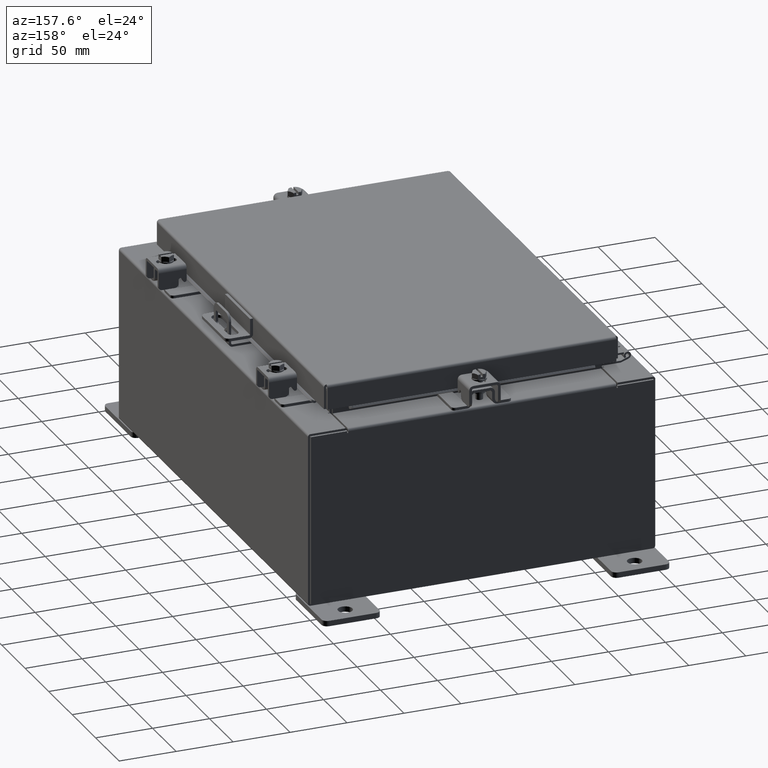
[diagram: clean part render]
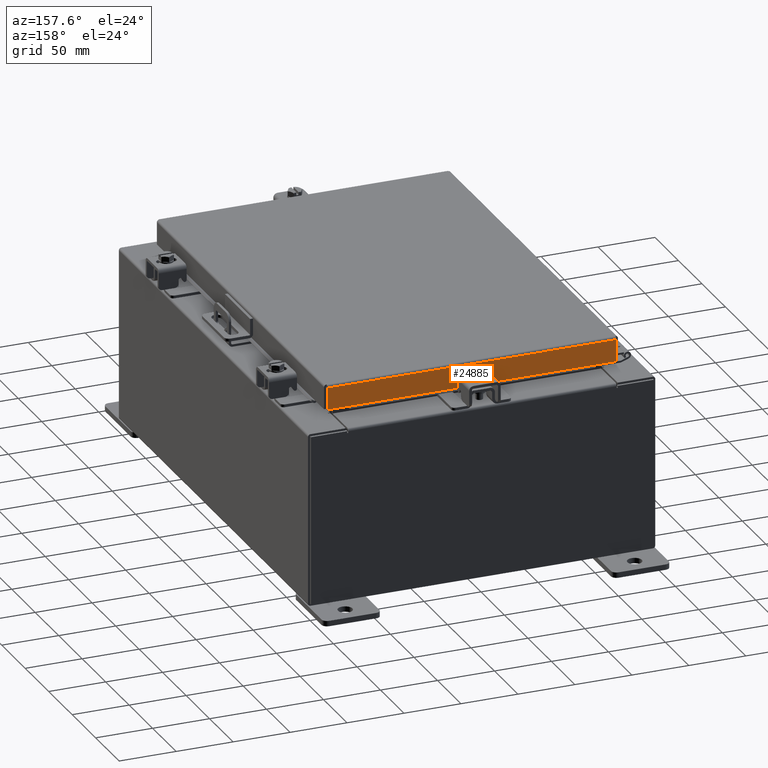
[diagram: same view with one face highlighted and labeled with its STEP entity id]
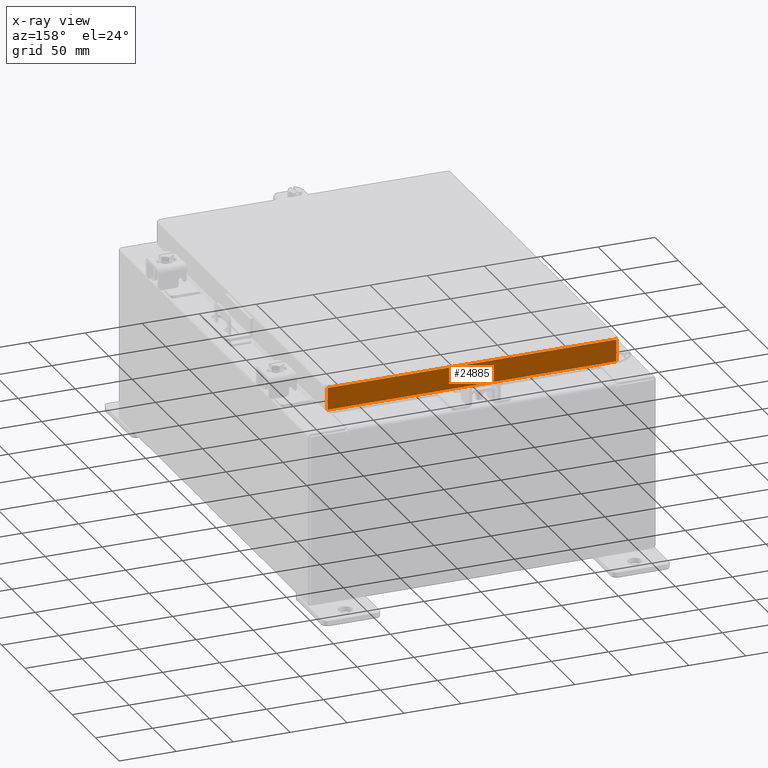
[diagram: x-ray of the same camera — body ghosted, the highlighted face saturated]
A machine part, auxiliary view. The second image highlights one B-rep face of the part: STEP entity #24885.
The next image is the same camera in x-ray: the body ghosted, the highlighted face saturated — about 0% of this face is hidden behind the body in this view.
In plain terms, the highlighted planar face has unit normal (0, -1, -0).
Its self-contained STEP definition (entity closure, byte-faithful):
#515 = VECTOR ( 'NONE', #8168, 39.37007874015748100 ) ;
#837 = CARTESIAN_POINT ( 'NONE',  ( -4.989157864376269700, 7.094000000000000300, -0.08770000000000007000 ) ) ;
#958 = LINE ( 'NONE', #25654, #21699 ) ;
#1037 = VERTEX_POINT ( 'NONE', #7954 ) ;
#1416 = EDGE_CURVE ( 'NONE', #24421, #1037, #21332, .T. ) ;
#1441 = ORIENTED_EDGE ( 'NONE', *, *, #24531, .F. ) ;
#2524 = LINE ( 'NONE', #18081, #19188 ) ;
#3628 = PLANE ( 'NONE',  #13770 ) ;
#4528 = CARTESIAN_POINT ( 'NONE',  ( -5.078000000000001200, 7.094000000000002100, -0.8500000000000008700 ) ) ;
#4905 = DIRECTION ( 'NONE',  ( -0.0000000000000000000, 2.818880942772355800E-015, -1.000000000000000000 ) ) ;
#5111 = CARTESIAN_POINT ( 'NONE',  ( -4.239157864376268800, 7.093999999999996800, -0.8500000000000014200 ) ) ;
#5651 = DIRECTION ( 'NONE',  ( 3.412110487939139000E-031, -1.000000000000000000, -2.818880942772355800E-015 ) ) ;
#5864 = LINE ( 'NONE', #10190, #515 ) ;
#5995 = EDGE_CURVE ( 'NONE', #9799, #24421, #5864, .T. ) ;
#6489 = VERTEX_POINT ( 'NONE', #5111 ) ;
#7954 = CARTESIAN_POINT ( 'NONE',  ( -4.989157864376269700, 7.094000000000002100, -0.8500000000000008700 ) ) ;
#8168 = DIRECTION ( 'NONE',  ( -1.000000000000000000, -3.412110487939139000E-031, -9.300620212429613300E-046 ) ) ;
#8349 = EDGE_CURVE ( 'NONE', #9799, #25171, #21119, .T. ) ;
#8748 = EDGE_LOOP ( 'NONE', ( #18019, #16104, #10739, #18288, #1441, #21843 ) ) ;
#9583 = LINE ( 'NONE', #4528, #14308 ) ;
#9799 = VERTEX_POINT ( 'NONE', #19560 ) ;
#10190 = CARTESIAN_POINT ( 'NONE',  ( -5.078000000000001200, 7.094000000000000300, -0.08770000000000007000 ) ) ;
#10413 = VECTOR ( 'NONE', #21421, 39.37007874015748100 ) ;
#10642 = VECTOR ( 'NONE', #4905, 39.37007874015748100 ) ;
#10739 = ORIENTED_EDGE ( 'NONE', *, *, #11244, .F. ) ;
#11244 = EDGE_CURVE ( 'NONE', #16340, #25171, #958, .T. ) ;
#11429 = EDGE_CURVE ( 'NONE', #6489, #16340, #2524, .T. ) ;
#11463 = FACE_OUTER_BOUND ( 'NONE', #8748, .T. ) ;
#12575 = CARTESIAN_POINT ( 'NONE',  ( 4.989157864376268000, 7.094000000000002100, -0.8499999999999996400 ) ) ;
#13770 = AXIS2_PLACEMENT_3D ( 'NONE', #15640, #5651, #19717 ) ;
#14308 = VECTOR ( 'NONE', #16539, 39.37007874015748100 ) ;
#15640 = CARTESIAN_POINT ( 'NONE',  ( -2.420551180144025400E-030, 7.094000000000000300, 2.025795506403867700E-014 ) ) ;
#16104 = ORIENTED_EDGE ( 'NONE', *, *, #8349, .T. ) ;
#16340 = VERTEX_POINT ( 'NONE', #23971 ) ;
#16539 = DIRECTION ( 'NONE',  ( 1.000000000000000000, 4.379057701015054300E-047, 1.210448599004449200E-016 ) ) ;
#16915 = CARTESIAN_POINT ( 'NONE',  ( -4.989157864376269700, 7.094000000000000300, -0.07469999999999978000 ) ) ;
#17559 = DIRECTION ( 'NONE',  ( 1.000000000000000000, 4.379057701015054300E-047, 1.210448599004449200E-016 ) ) ;
#18019 = ORIENTED_EDGE ( 'NONE', *, *, #5995, .F. ) ;
#18081 = CARTESIAN_POINT ( 'NONE',  ( -4.239157864376268800, 7.093999999999996800, -0.8500000000000014200 ) ) ;
#18164 = DIRECTION ( 'NONE',  ( 1.000000000000000000, -0.0000000000000000000, -0.0000000000000000000 ) ) ;
#18288 = ORIENTED_EDGE ( 'NONE', *, *, #11429, .F. ) ;
#19188 = VECTOR ( 'NONE', #18164, 39.37007874015748100 ) ;
#19417 = CARTESIAN_POINT ( 'NONE',  ( 4.989157864376268000, 7.094000000000000300, 2.025795506403867700E-014 ) ) ;
#19560 = CARTESIAN_POINT ( 'NONE',  ( 4.989157864376268000, 7.094000000000000300, -0.08770000000000007000 ) ) ;
#19717 = DIRECTION ( 'NONE',  ( 0.0000000000000000000, 2.818880942772355800E-015, -1.000000000000000000 ) ) ;
#21119 = LINE ( 'NONE', #19417, #10413 ) ;
#21332 = LINE ( 'NONE', #16915, #10642 ) ;
#21421 = DIRECTION ( 'NONE',  ( 0.0000000000000000000, 2.818880942772355800E-015, -1.000000000000000000 ) ) ;
#21699 = VECTOR ( 'NONE', #17559, 39.37007874015748100 ) ;
#21843 = ORIENTED_EDGE ( 'NONE', *, *, #1416, .F. ) ;
#23971 = CARTESIAN_POINT ( 'NONE',  ( 4.239157864376265300, 7.093999999999996800, -0.8500000000000014200 ) ) ;
#24421 = VERTEX_POINT ( 'NONE', #837 ) ;
#24531 = EDGE_CURVE ( 'NONE', #1037, #6489, #9583, .T. ) ;
#24885 = ADVANCED_FACE ( 'NONE', ( #11463 ), #3628, .F. ) ;
#25171 = VERTEX_POINT ( 'NONE', #12575 ) ;
#25654 = CARTESIAN_POINT ( 'NONE',  ( -5.078000000000001200, 7.094000000000002100, -0.8500000000000008700 ) ) ;